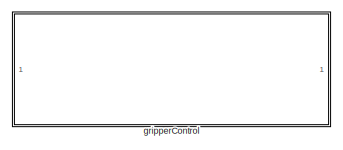
[diagram: root canvas - part 1/2, top center region]
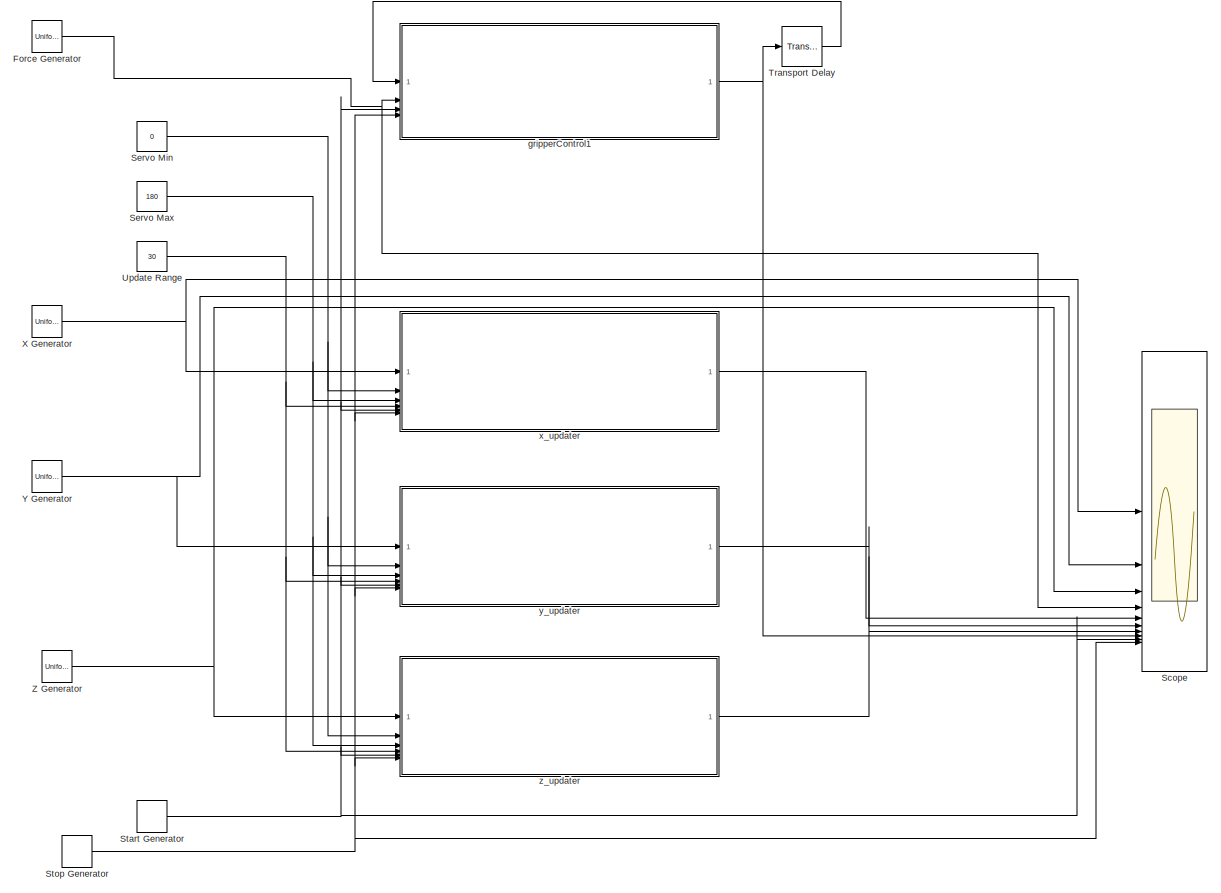
[diagram: root canvas - part 2/2, most of the canvas]
MODEL slx_d6ea8ba753a8
KIND model
CONFIG AbsTol = auto
CONFIG EnableMultiTasking = on
CONFIG FixedStep = 0.01
CONFIG MaxStep = auto
CONFIG MinStep = auto
CONFIG RelTol = 1e-3
CONFIG SampleTimeConstraint = Unconstrained
CONFIG SolverName = FixedStepDiscrete
CONFIG StartTime = 0.0
CONFIG StopTime = 20
BLOCK [UniformRandomNumber] Force Generator
  Maximum = 71
  Minimum = 1
  SampleTime = 0.1
  Seed = 4
BLOCK [Scope] Scope
  Floating = off
  NumInputPorts = 10
  ScopeSpecificationString = Simulink.scopes.TimeScopeBlockCfg('CurrentConfiguration', extmgr.ConfigurationSet(extmgr.Configuration('Core','General UI',true),extmgr.Configuration('Core','Source UI',true),extmgr.Configuration('Sources','WiredSimulink',true),extmgr.Configuration('Visuals','Time Domain',true,'SerializedDisplays',{struct('MinYLimReal','-44.9756','MaxYLimReal','404.78044','YLabelReal','','MinYLimMag','0.00000','Ma...<+6330ch>
BLOCK [Constant] Servo Max
  Value = 180
BLOCK [Constant] Servo Min
  Value = 0
BLOCK [DiscretePulseGenerator] Start Generator
  Period = 20
  PhaseDelay = 5
  PulseType = Time based
  PulseWidth = 5
BLOCK [DiscretePulseGenerator] Stop Generator
  Period = 20
  PhaseDelay = 15
  PulseType = Time based
  PulseWidth = 5
BLOCK [TransportDelay] Transport Delay
  DelayTime = .5
BLOCK [Constant] Update Range
  Value = 30
BLOCK [UniformRandomNumber] X Generator
  Maximum = 360
  Minimum = 0
  SampleTime = 0.1
BLOCK [UniformRandomNumber] Y Generator
  Maximum = 180
  Minimum = 0
  SampleTime = 0.1
  Seed = 1
BLOCK [UniformRandomNumber] Z Generator
  Maximum = 180
  Minimum = 0
  SampleTime = 0.1
  Seed = 2
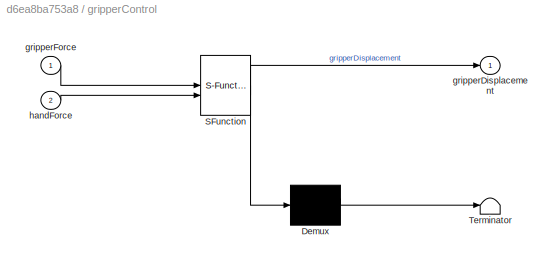
BLOCK [SubSystem] gripperControl
  Commented = on
  ErrorFcn = Stateflow.Translate.translate
  PermitHierarchicalResolution = ExplicitOnly
  SFBlockType = Chart
  TreatAsAtomicUnit = on
BLOCK [Demux] gripperControl/ Demux 
  Outputs = 1
BLOCK [S-Function] gripperControl/ SFunction 
  EnableBusSupport = on
  FunctionName = sf_sfun
  PortCounts = [2 2]
  SFcnIsStateOwnerBlock = off
  SFunctionDeploymentMode = off
  Tag = Stateflow S-Function 3
BLOCK [Terminator] gripperControl/ Terminator 
BLOCK [Outport] gripperControl/gripperDisplacement
BLOCK [Inport] gripperControl/gripperForce
BLOCK [Inport] gripperControl/handForce
  Port = 2
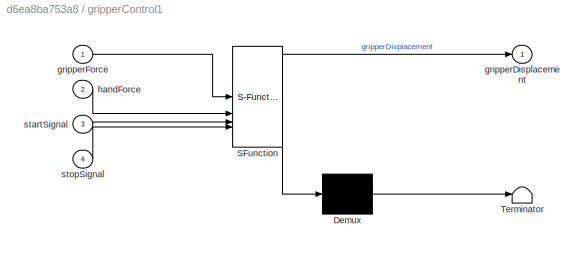
BLOCK [SubSystem] gripperControl1
  ErrorFcn = Stateflow.Translate.translate
  PermitHierarchicalResolution = ExplicitOnly
  SFBlockType = Chart
  TreatAsAtomicUnit = on
BLOCK [Demux] gripperControl1/ Demux 
  Outputs = 1
BLOCK [S-Function] gripperControl1/ SFunction 
  EnableBusSupport = on
  FunctionName = sf_sfun
  PortCounts = [4 2]
  SFcnIsStateOwnerBlock = off
  SFunctionDeploymentMode = off
  Tag = Stateflow S-Function 1
BLOCK [Terminator] gripperControl1/ Terminator 
BLOCK [Outport] gripperControl1/gripperDisplacement
BLOCK [Inport] gripperControl1/gripperForce
BLOCK [Inport] gripperControl1/handForce
  Port = 2
BLOCK [Inport] gripperControl1/startSignal
  Port = 3
BLOCK [Inport] gripperControl1/stopSignal
  Port = 4
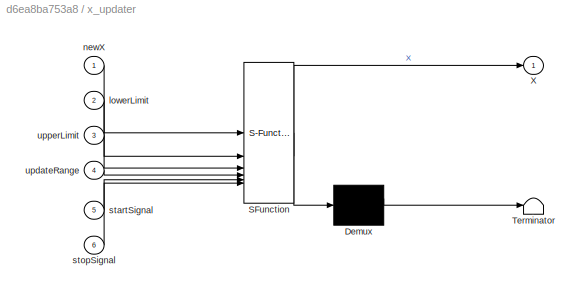
BLOCK [SubSystem] x_updater
  ErrorFcn = Stateflow.Translate.translate
  PermitHierarchicalResolution = ExplicitOnly
  SFBlockType = Chart
  TreatAsAtomicUnit = on
BLOCK [Demux] x_updater/ Demux 
  Outputs = 1
BLOCK [S-Function] x_updater/ SFunction 
  EnableBusSupport = on
  FunctionName = sf_sfun
  PortCounts = [6 2]
  SFcnIsStateOwnerBlock = off
  SFunctionDeploymentMode = off
  Tag = Stateflow S-Function 6
BLOCK [Terminator] x_updater/ Terminator 
BLOCK [Outport] x_updater/X
BLOCK [Inport] x_updater/lowerLimit
  Port = 2
BLOCK [Inport] x_updater/newX
BLOCK [Inport] x_updater/startSignal
  Port = 5
BLOCK [Inport] x_updater/stopSignal
  Port = 6
BLOCK [Inport] x_updater/updateRange
  Port = 4
BLOCK [Inport] x_updater/upperLimit
  Port = 3
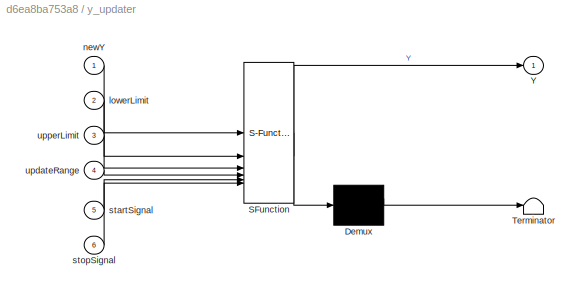
BLOCK [SubSystem] y_updater
  ErrorFcn = Stateflow.Translate.translate
  PermitHierarchicalResolution = ExplicitOnly
  SFBlockType = Chart
  TreatAsAtomicUnit = on
BLOCK [Demux] y_updater/ Demux 
  Outputs = 1
BLOCK [S-Function] y_updater/ SFunction 
  EnableBusSupport = on
  FunctionName = sf_sfun
  PortCounts = [6 2]
  SFcnIsStateOwnerBlock = off
  SFunctionDeploymentMode = off
  Tag = Stateflow S-Function 2
BLOCK [Terminator] y_updater/ Terminator 
BLOCK [Outport] y_updater/Y
BLOCK [Inport] y_updater/lowerLimit
  Port = 2
BLOCK [Inport] y_updater/newY
BLOCK [Inport] y_updater/startSignal
  Port = 5
BLOCK [Inport] y_updater/stopSignal
  Port = 6
BLOCK [Inport] y_updater/updateRange
  Port = 4
BLOCK [Inport] y_updater/upperLimit
  Port = 3
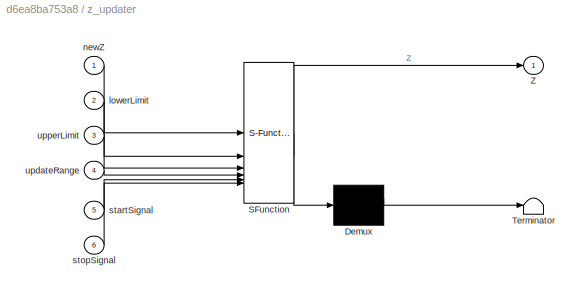
BLOCK [SubSystem] z_updater
  ErrorFcn = Stateflow.Translate.translate
  PermitHierarchicalResolution = ExplicitOnly
  SFBlockType = Chart
  TreatAsAtomicUnit = on
BLOCK [Demux] z_updater/ Demux 
  Outputs = 1
BLOCK [S-Function] z_updater/ SFunction 
  EnableBusSupport = on
  FunctionName = sf_sfun
  PortCounts = [6 2]
  SFcnIsStateOwnerBlock = off
  SFunctionDeploymentMode = off
  Tag = Stateflow S-Function 4
BLOCK [Terminator] z_updater/ Terminator 
BLOCK [Outport] z_updater/Z
BLOCK [Inport] z_updater/lowerLimit
  Port = 2
BLOCK [Inport] z_updater/newZ
BLOCK [Inport] z_updater/startSignal
  Port = 5
BLOCK [Inport] z_updater/stopSignal
  Port = 6
BLOCK [Inport] z_updater/updateRange
  Port = 4
BLOCK [Inport] z_updater/upperLimit
  Port = 3
NET Force Generator:1 -> Scope:4, gripperControl1:2
NET Servo Max:1 -> x_updater:3, y_updater:3, z_updater:3
NET Servo Min:1 -> x_updater:2, y_updater:2, z_updater:2
NET Start Generator:1 -> Scope:9, gripperControl1:3, x_updater:5, y_updater:5, z_updater:5
NET Stop Generator:1 -> Scope:10, gripperControl1:4, x_updater:6, y_updater:6, z_updater:6
LINE Transport Delay:1 -> gripperControl1:1
NET Update Range:1 -> x_updater:4, y_updater:4, z_updater:4
NET X Generator:1 -> Scope:1, x_updater:1
NET Y Generator:1 -> Scope:2, y_updater:1
NET Z Generator:1 -> Scope:3, z_updater:1
NET gripperControl1:1 -> Scope:8, Transport Delay:1
LINE x_updater:1 -> Scope:5
LINE y_updater:1 -> Scope:6
LINE z_updater:1 -> Scope:7
note: NET lines group one-source signal fan-out (src -> all destinations, sorted); 1:1 wires keep LINE
CHART gripperControl1 states=2 transitions=5
  STATE_LABEL 'Active'
  STATE_LABEL 'Stopped'
CHART y_updater states=2 transitions=4
  STATE_LABEL 'Active'
  STATE_LABEL 'Stopped'
CHART gripperControl states=3 transitions=8
  STATE_LABEL 'Gripping'
  STATE_LABEL 'Idle\n\n'
  STATE_LABEL 'Releasing'
CHART z_updater states=2 transitions=4
  STATE_LABEL 'Active'
  STATE_LABEL 'Stopped'
CHART x_updater states=2 transitions=4
  STATE_LABEL 'Active'
  STATE_LABEL 'Stopped'
CHART  states=0 transitions=0
CHART  states=0 transitions=0
CHART  states=0 transitions=0
CHART  states=0 transitions=0
CHART  states=0 transitions=0
